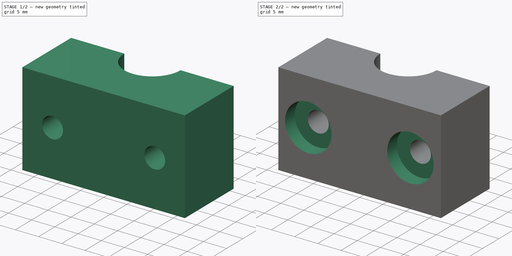
[diagram: build sequence overview — one tinted view per stage of 2, left to right]
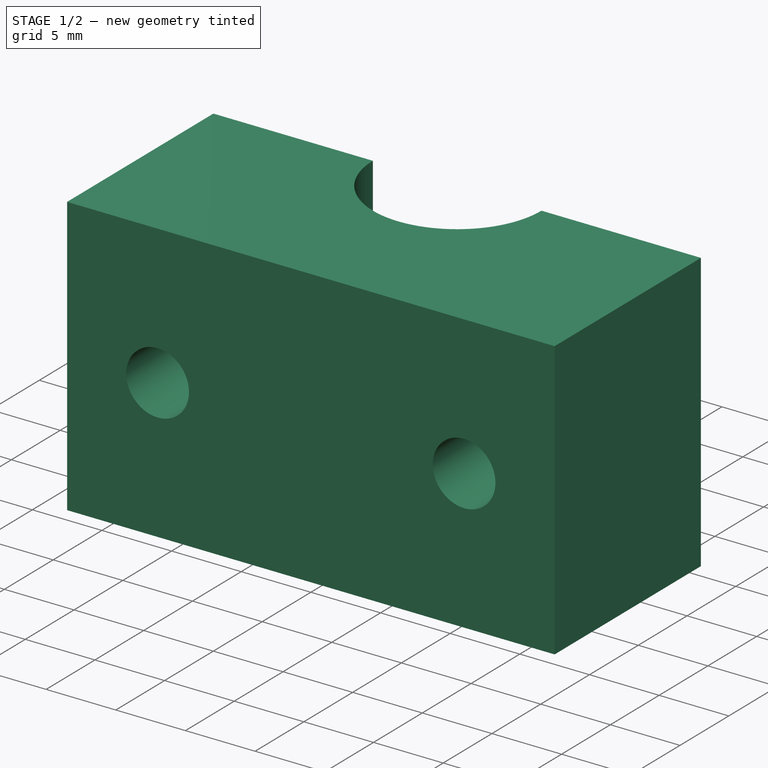
[diagram: stage 1 of 2 — iso view after this stage's code; geometry added in this stage tinted green]
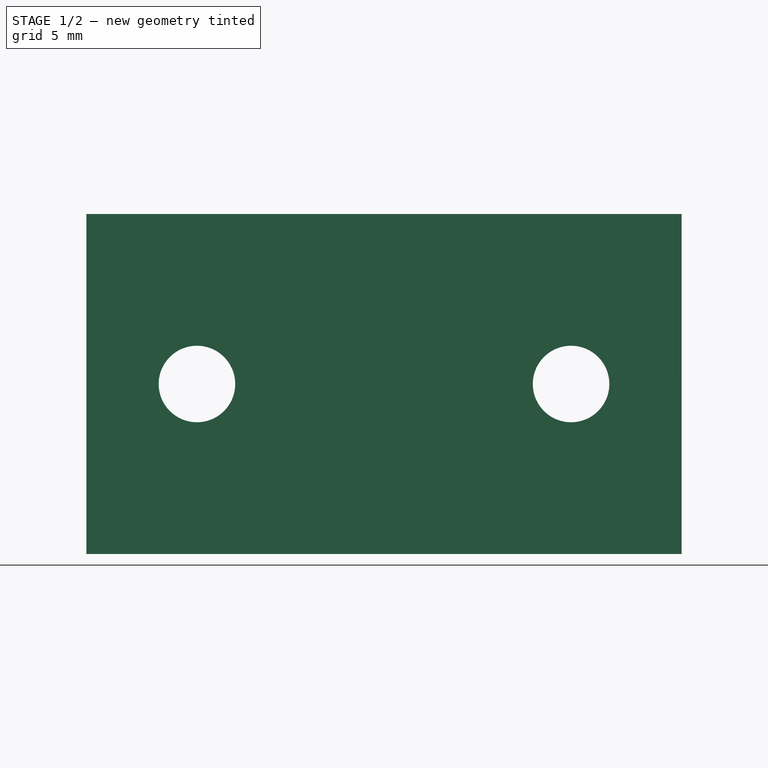
[diagram: stage 1 of 2 — front view after this stage's code; geometry added in this stage tinted green]
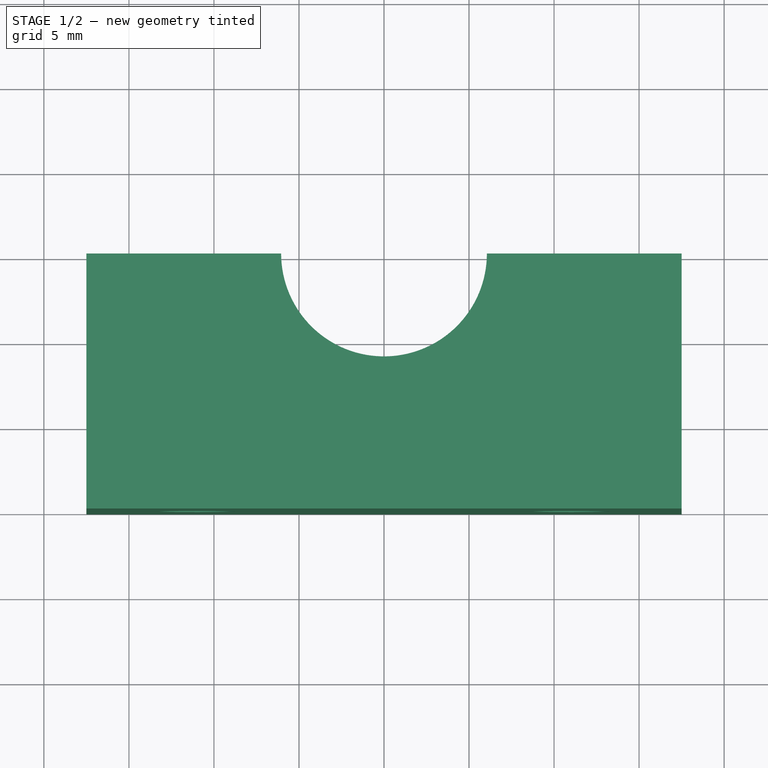
[diagram: stage 1 of 2 — top view after this stage's code; geometry added in this stage tinted green]
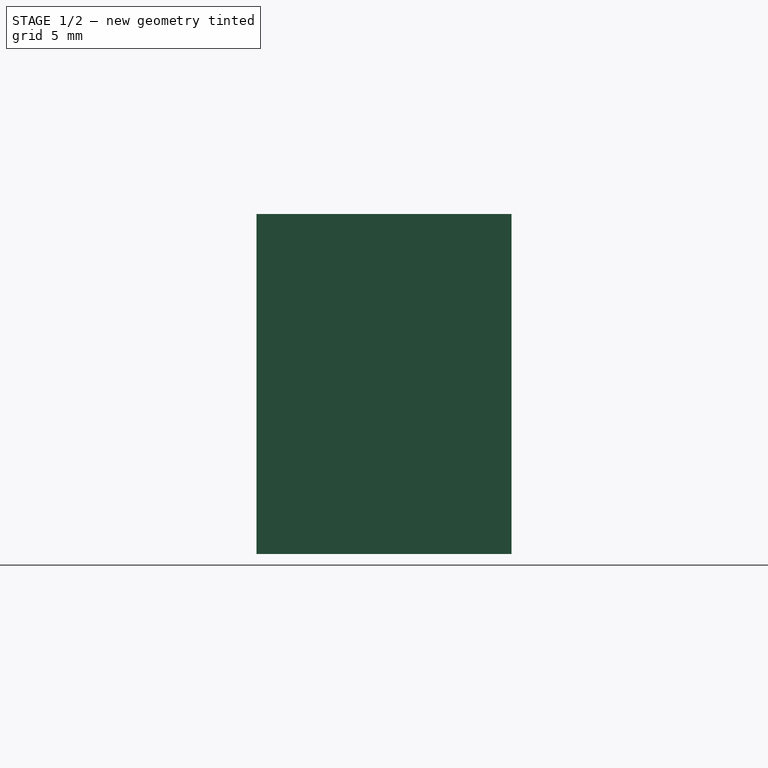
[diagram: stage 1 of 2 — right view after this stage's code; geometry added in this stage tinted green]
FCSTD DOCUMENT
Label: Z-axis-clamp-2
objects: Sketcher::SketchObject×3, PartDesign::Pocket×2, PartDesign::Pad×1
note: 9 computed .brp shape members not serialized (recipe doc carries the construction recipe); baked Part::Feature solids carry a one-line shape summary decoded from their .brp

FEATURE [Sketcher::SketchObject] Sketch
  sketch-geometry (6):
    g0: ArcOfCircle CenterX=0 CenterY=0 CenterZ=0 NormalX=0 NormalY=0 NormalZ=1 Radius=6.05 StartAngle=3.14159 EndAngle=6.28319
    g1: LineSegment StartX=-17.5 StartY=0 StartZ=0 EndX=-6.05 EndY=0 EndZ=0
    g2: LineSegment StartX=17.5 StartY=0 StartZ=0 EndX=17.5 EndY=-15 EndZ=0
    g3: LineSegment StartX=17.5 StartY=-15 StartZ=0 EndX=-17.5 EndY=-15 EndZ=0
    g4: LineSegment StartX=-17.5 StartY=-15 StartZ=0 EndX=-17.5 EndY=0 EndZ=0
    g5: LineSegment StartX=6.05 StartY=0 StartZ=0 EndX=17.5 EndY=0 EndZ=0
  constraints (17):
    c: Coincident(g0,g-1)
    c: Radius(g0) = 6.05
    c: Coincident(g5,g2)
    c: Coincident(g2,g3)
    c: Coincident(g3,g4)
    c: Coincident(g4,g1)
    c: Horizontal(g1)
    c: Horizontal(g3)
    c: Vertical(g2)
    c: Vertical(g4)
    c: Symmetric(g1,g5,g-2)
    c: Distance(g3) = 35
    c: DistanceY(g-1,g3) = -15
    c: PointOnObject(g1,g-1)
    c: Coincident(g1,g0)
    c: Coincident(g5,g0)
    c: Tangent(g1,g5)
FEATURE [PartDesign::Pad] Pad
  Length = 20
  Length2 = 100
  Sketch = -> Sketch
  Type = 0
FEATURE [Sketcher::SketchObject] Sketch001
  Placement = pos=(0,-15,0) rot=(1,0,0;1.5708rad)
  Support = -> Pad [Face4]
  sketch-geometry (2):
    g0: Circle CenterX=-11 CenterY=10 CenterZ=0 NormalX=0 NormalY=0 NormalZ=1 Radius=2.25
    g1: Circle CenterX=11 CenterY=10 CenterZ=0 NormalX=0 NormalY=0 NormalZ=1 Radius=2.25
  constraints (6):
    c: DistanceY(g0,g1) = 0
    c: Symmetric(g0,g1,g-2)
    c: DistanceX(g0,g1) = 22
    c: DistanceY(g-1,g0) = 10
    c: Equal(g0,g1)
    c: Radius(g1) = 2.25
FEATURE [PartDesign::Pocket] Pocket
  Length = 5
  Sketch = -> Sketch001
  Type = 1
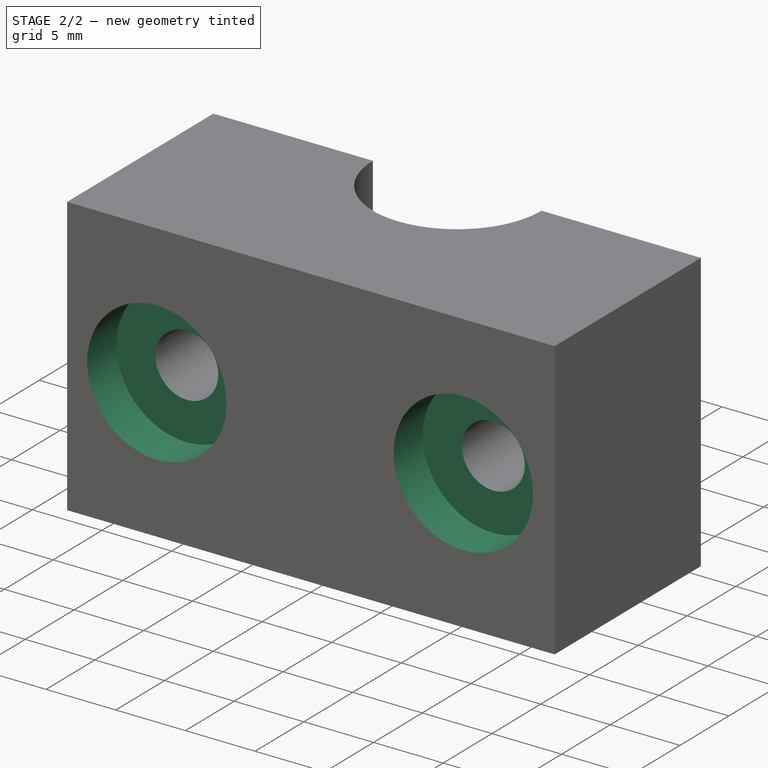
[diagram: stage 2 of 2 — iso view after this stage's code; geometry added in this stage tinted green]
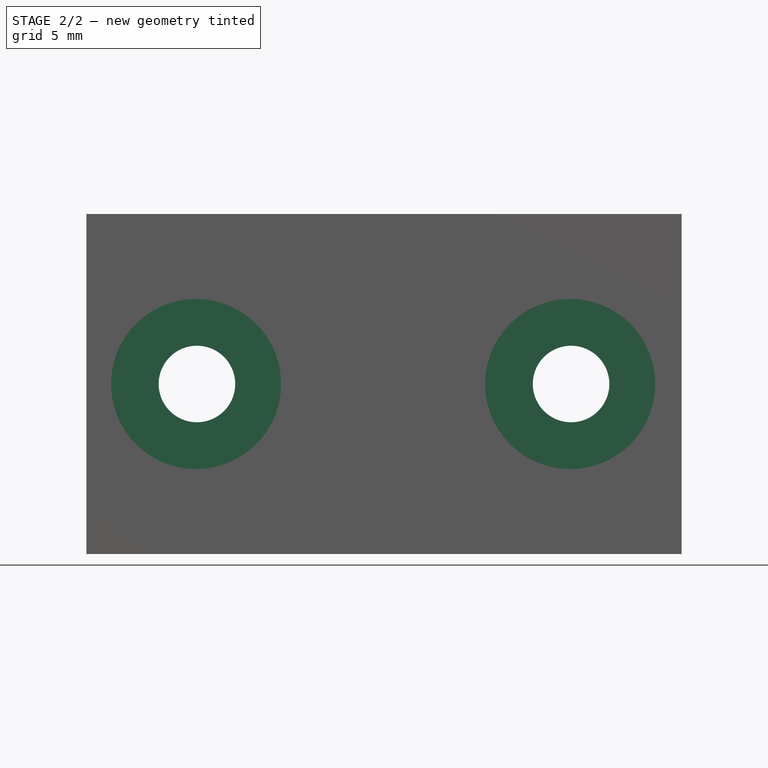
[diagram: stage 2 of 2 — front view after this stage's code; geometry added in this stage tinted green]
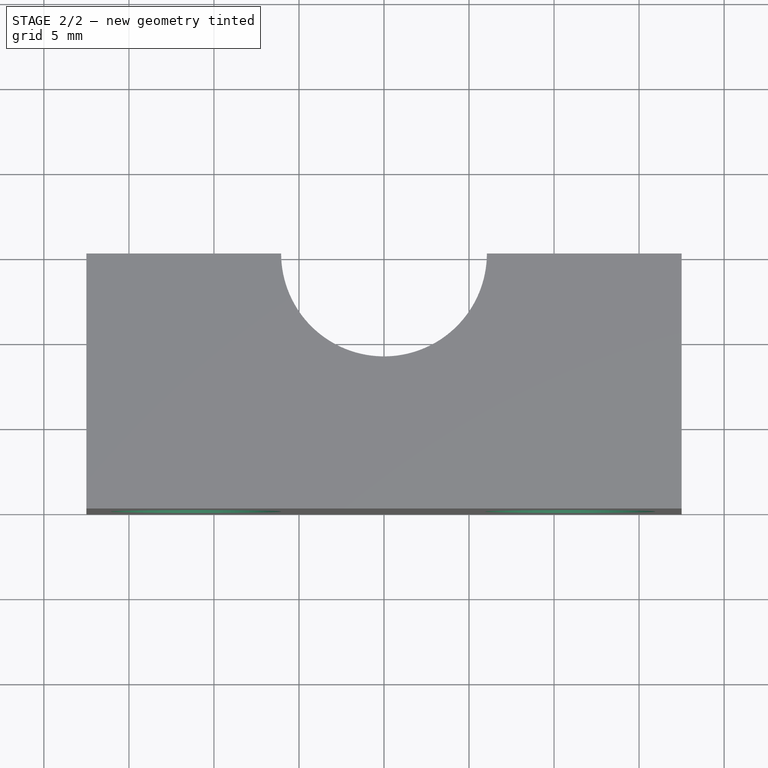
[diagram: stage 2 of 2 — top view after this stage's code; geometry added in this stage tinted green]
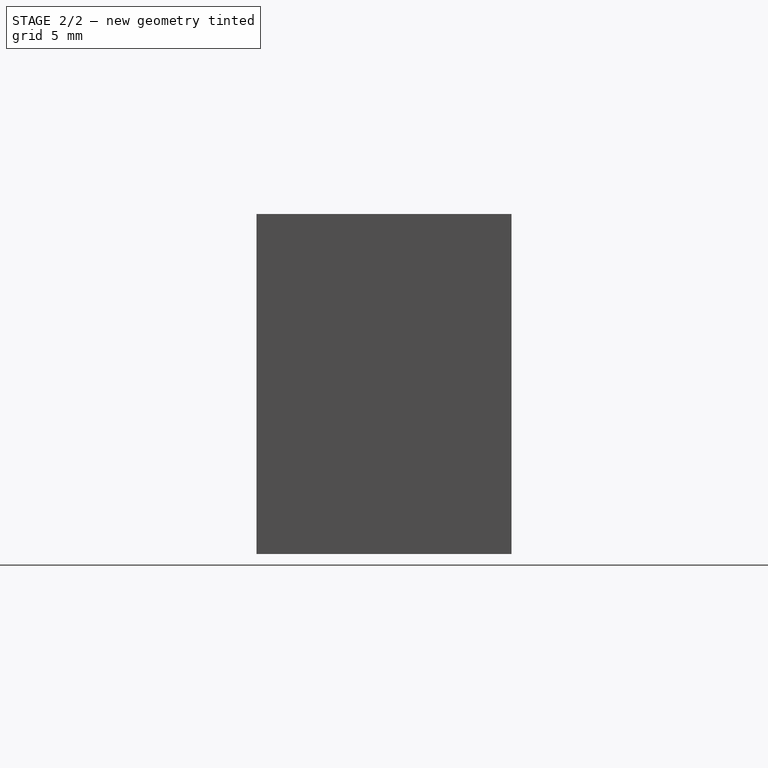
[diagram: stage 2 of 2 — right view after this stage's code; geometry added in this stage tinted green]
FEATURE [Sketcher::SketchObject] Sketch002
  Placement = pos=(0,-15,0) rot=(1,0,0;1.5708rad)
  Support = -> Pocket [Face10]
  sketch-geometry (2):
    g0: Circle CenterX=-11.0524 CenterY=10 CenterZ=0 NormalX=0 NormalY=0 NormalZ=1 Radius=5
    g1: Circle CenterX=10.9476 CenterY=10 CenterZ=0 NormalX=0 NormalY=0 NormalZ=1 Radius=5
  constraints (5):
    c: DistanceY(g0,g1) = 0
    c: DistanceX(g0,g1) = 22
    c: DistanceY(g-1,g0) = 10
    c: Equal(g1,g0)
    c: Radius(g1) = 5
FEATURE [PartDesign::Pocket] Pocket001  label="Z-axis-clamp-2"
  Length = 3
  Sketch = -> Sketch002
  Type = 0
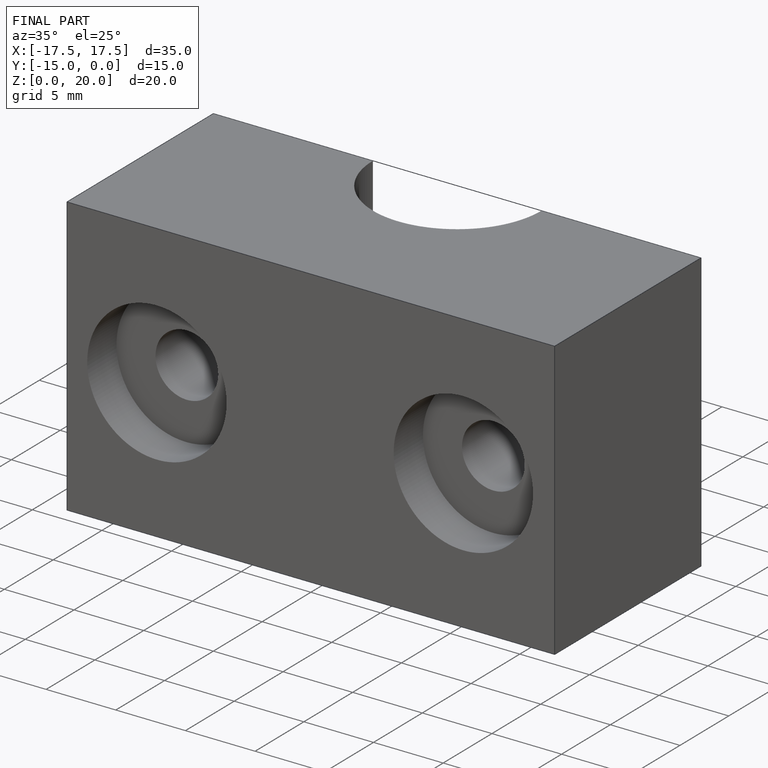
[diagram: finished part — iso view with bounding-box wireframe]
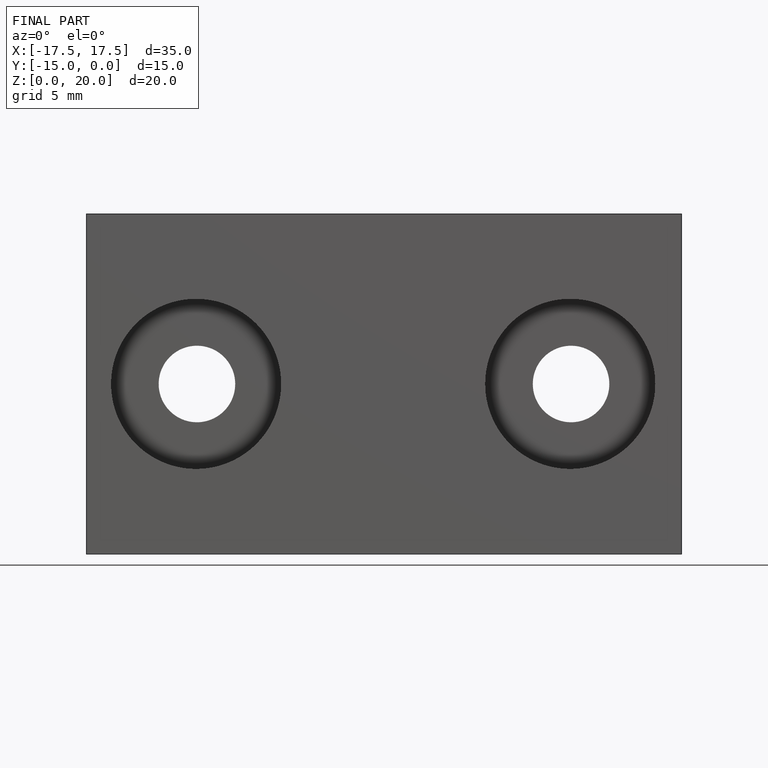
[diagram: finished part — front view with bounding-box wireframe]
